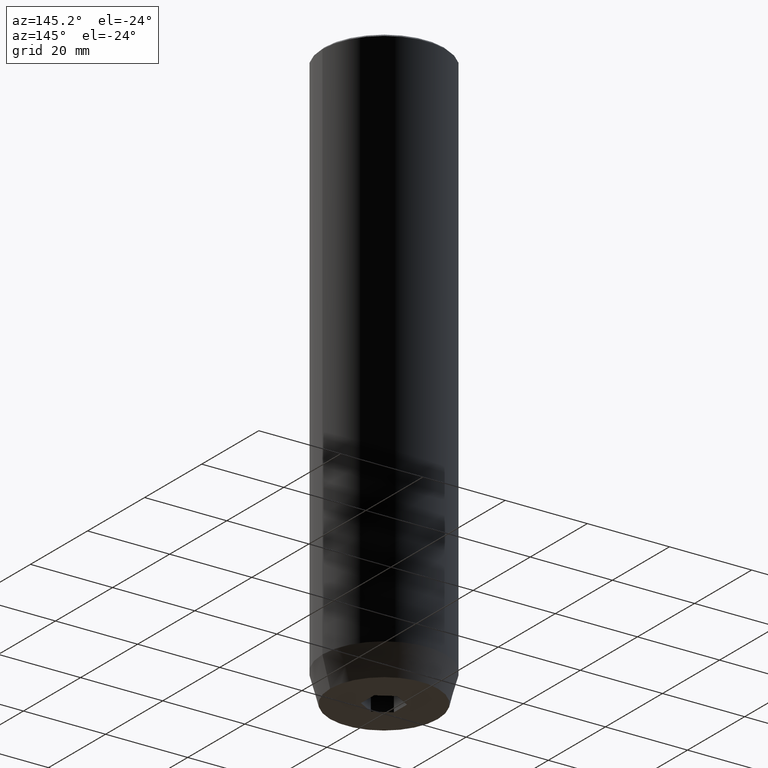
[diagram: clean part render]
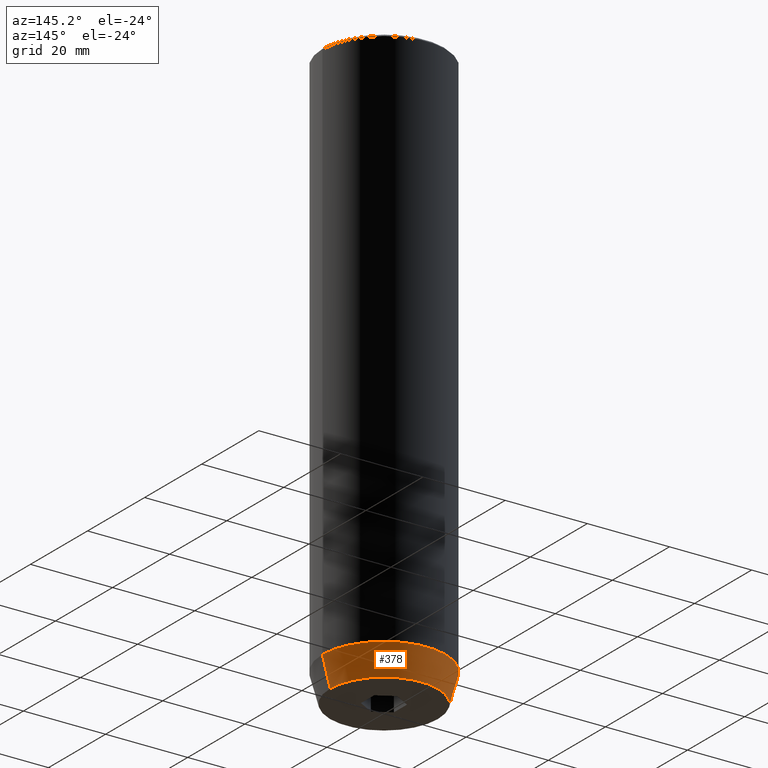
[diagram: same view with one face highlighted and labeled with its STEP entity id]
A machine part, auxiliary view. The second image highlights one B-rep face of the part: STEP entity #378.
In plain terms, the highlighted conical surface has half-angle 15 deg.
Its self-contained STEP definition (entity closure, byte-faithful):
#17 = CARTESIAN_POINT ( 'NONE',  ( 15.00000000000000000, 0.000000000000000000, -133.0000000000000000 ) ) ;
#39 = CARTESIAN_POINT ( 'NONE',  ( 0.000000000000000000, 0.000000000000000000, -133.0000000000000000 ) ) ;
#46 = CONICAL_SURFACE ( 'NONE', #444, 15.00000000000000000, 0.2617993877991500740 ) ;
#51 = EDGE_CURVE ( 'NONE', #174, #287, #259, .T. ) ;
#53 = CARTESIAN_POINT ( 'NONE',  ( -15.00000000000000000, 1.836970198721029589E-15, -133.0000000000000000 ) ) ;
#80 = CARTESIAN_POINT ( 'NONE',  ( 0.000000000000000000, 0.000000000000000000, -133.0000000000000000 ) ) ;
#85 = ORIENTED_EDGE ( 'NONE', *, *, #51, .T. ) ;
#92 = DIRECTION ( 'NONE',  ( 1.000000000000000000, 0.000000000000000000, 0.000000000000000000 ) ) ;
#140 = CIRCLE ( 'NONE', #221, 15.00000000000000000 ) ;
#148 = ORIENTED_EDGE ( 'NONE', *, *, #391, .F. ) ;
#174 = VERTEX_POINT ( 'NONE', #315 ) ;
#181 = ORIENTED_EDGE ( 'NONE', *, *, #284, .F. ) ;
#221 = AXIS2_PLACEMENT_3D ( 'NONE', #80, #487, #235 ) ;
#235 = DIRECTION ( 'NONE',  ( 1.000000000000000000, 0.000000000000000000, 0.000000000000000000 ) ) ;
#238 = CARTESIAN_POINT ( 'NONE',  ( -15.00000000000000000, 1.836970198721029589E-15, -133.0000000000000000 ) ) ;
#259 = LINE ( 'NONE', #53, #636 ) ;
#282 = FACE_OUTER_BOUND ( 'NONE', #336, .T. ) ;
#284 = EDGE_CURVE ( 'NONE', #580, #287, #140, .T. ) ;
#287 = VERTEX_POINT ( 'NONE', #238 ) ;
#315 = CARTESIAN_POINT ( 'NONE',  ( -13.12435565298213369, 1.722120106425316888E-15, -140.0000000000000000 ) ) ;
#330 = VECTOR ( 'NONE', #344, 1000.000000000000000 ) ;
#332 = LINE ( 'NONE', #438, #330 ) ;
#336 = EDGE_LOOP ( 'NONE', ( #533, #85, #181, #148 ) ) ;
#344 = DIRECTION ( 'NONE',  ( 0.2588190451025213501, 0.000000000000000000, 0.9659258262890680902 ) ) ;
#378 = ADVANCED_FACE ( 'NONE', ( #282 ), #46, .T. ) ;
#391 = EDGE_CURVE ( 'NONE', #608, #580, #332, .T. ) ;
#397 = DIRECTION ( 'NONE',  ( -0.000000000000000000, -0.000000000000000000, 1.000000000000000000 ) ) ;
#402 = AXIS2_PLACEMENT_3D ( 'NONE', #590, #397, #452 ) ;
#438 = CARTESIAN_POINT ( 'NONE',  ( 15.00000000000000000, 0.000000000000000000, -133.0000000000000000 ) ) ;
#444 = AXIS2_PLACEMENT_3D ( 'NONE', #39, #581, #92 ) ;
#452 = DIRECTION ( 'NONE',  ( 1.000000000000000000, 0.000000000000000000, 0.000000000000000000 ) ) ;
#468 = CARTESIAN_POINT ( 'NONE',  ( 13.12435565298213369, 0.000000000000000000, -140.0000000000000000 ) ) ;
#487 = DIRECTION ( 'NONE',  ( -0.000000000000000000, -0.000000000000000000, 1.000000000000000000 ) ) ;
#506 = EDGE_CURVE ( 'NONE', #608, #174, #628, .T. ) ;
#533 = ORIENTED_EDGE ( 'NONE', *, *, #506, .T. ) ;
#549 = DIRECTION ( 'NONE',  ( -0.2588190451025213501, 3.169619151431772337E-17, 0.9659258262890680902 ) ) ;
#580 = VERTEX_POINT ( 'NONE', #17 ) ;
#581 = DIRECTION ( 'NONE',  ( -0.000000000000000000, -0.000000000000000000, 1.000000000000000000 ) ) ;
#590 = CARTESIAN_POINT ( 'NONE',  ( 0.000000000000000000, 0.000000000000000000, -140.0000000000000000 ) ) ;
#608 = VERTEX_POINT ( 'NONE', #468 ) ;
#628 = CIRCLE ( 'NONE', #402, 13.12435565298213369 ) ;
#636 = VECTOR ( 'NONE', #549, 1000.000000000000000 ) ;